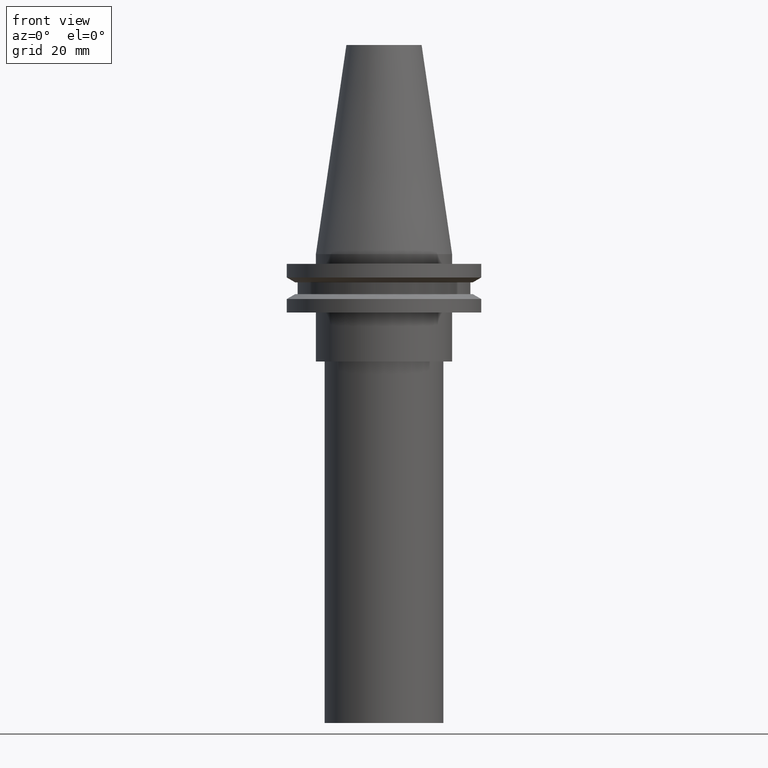
[diagram: clean part render]
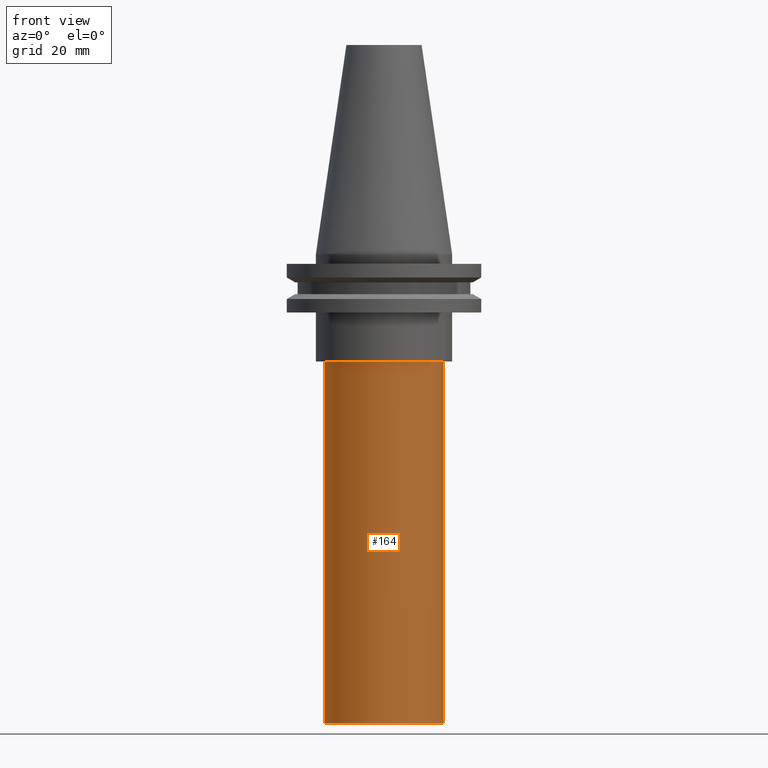
[diagram: same view with one face highlighted and labeled with its STEP entity id]
A machine part, front view. The second image highlights one B-rep face of the part: STEP entity #164.
In plain terms, the highlighted cylindrical surface (bore or boss wall) has radius 19.5 mm, axis along (-0, 0, -1).
Its self-contained STEP definition (entity closure, byte-faithful):
#11 = ORIENTED_EDGE ( 'NONE', *, *, #321, .T. ) ;
#15 = DIRECTION ( 'NONE',  ( -0.000000000000000000, 8.721520231316460916E-17, -1.000000000000000000 ) ) ;
#26 = CIRCLE ( 'NONE', #207, 19.50000000000000000 ) ;
#34 = EDGE_CURVE ( 'NONE', #378, #378, #265, .T. ) ;
#90 = EDGE_LOOP ( 'NONE', ( #11 ) ) ;
#111 = DIRECTION ( 'NONE',  ( 0.000000000000000000, 1.000000000000000000, 0.000000000000000000 ) ) ;
#120 = DIRECTION ( 'NONE',  ( -0.000000000000000000, 8.721520231316460916E-17, -1.000000000000000000 ) ) ;
#143 = DIRECTION ( 'NONE',  ( -0.000000000000000000, 8.721520231316460916E-17, -1.000000000000000000 ) ) ;
#158 = DIRECTION ( 'NONE',  ( 0.000000000000000000, 1.000000000000000000, 0.000000000000000000 ) ) ;
#161 = CARTESIAN_POINT ( 'NONE',  ( 0.000000000000000000, 19.50000000000000000, -153.0000000000000000 ) ) ;
#162 = CARTESIAN_POINT ( 'NONE',  ( 0.000000000000000000, 19.50000000000000000, -35.04999999999999716 ) ) ;
#164 = ADVANCED_FACE ( 'NONE', ( #215, #273 ), #208, .T. ) ;
#181 = CARTESIAN_POINT ( 'NONE',  ( 0.000000000000000000, 0.000000000000000000, -35.04999999999999716 ) ) ;
#207 = AXIS2_PLACEMENT_3D ( 'NONE', #181, #15, #158 ) ;
#208 = CYLINDRICAL_SURFACE ( 'NONE', #211, 19.49999999999999645 ) ;
#211 = AXIS2_PLACEMENT_3D ( 'NONE', #307, #120, #305 ) ;
#215 = FACE_OUTER_BOUND ( 'NONE', #90, .T. ) ;
#262 = CARTESIAN_POINT ( 'NONE',  ( 0.000000000000000000, 1.028703311283776507E-14, -153.0000000000000000 ) ) ;
#265 = CIRCLE ( 'NONE', #349, 19.49999999999998934 ) ;
#268 = EDGE_LOOP ( 'NONE', ( #311 ) ) ;
#273 = FACE_OUTER_BOUND ( 'NONE', #268, .T. ) ;
#305 = DIRECTION ( 'NONE',  ( 0.000000000000000000, 1.000000000000000000, 0.000000000000000000 ) ) ;
#307 = CARTESIAN_POINT ( 'NONE',  ( 0.000000000000000000, 1.028703311283776507E-14, -153.0000000000000000 ) ) ;
#311 = ORIENTED_EDGE ( 'NONE', *, *, #34, .F. ) ;
#321 = EDGE_CURVE ( 'NONE', #344, #344, #26, .T. ) ;
#344 = VERTEX_POINT ( 'NONE', #162 ) ;
#349 = AXIS2_PLACEMENT_3D ( 'NONE', #262, #143, #111 ) ;
#378 = VERTEX_POINT ( 'NONE', #161 ) ;